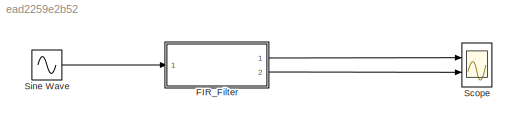
MODEL slx_ead2259e2b52
KIND model
CONFIG AbsTol = auto
CONFIG EnableMultiTasking = off
CONFIG FixedStep = auto
CONFIG MaxStep = auto
CONFIG MinStep = auto
CONFIG RelTol = 1e-3
CONFIG SampleTimeConstraint = Unconstrained
CONFIG Solver = VariableStepAuto
CONFIG SolverName = VariableStepAuto
CONFIG StartTime = 0.0
CONFIG StopTime = 10.0
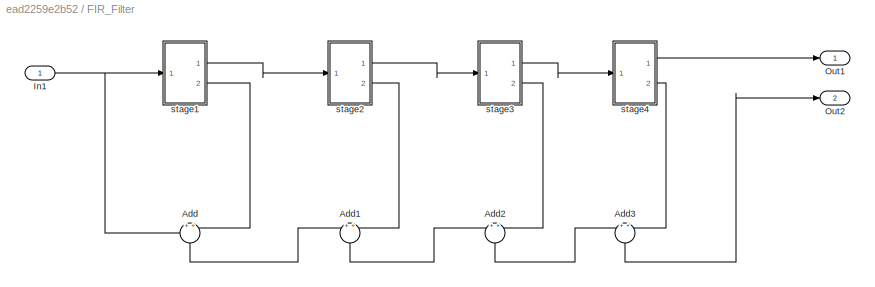
BLOCK [SubSystem] FIR_Filter
  Ports = [1, 2]
  RequestExecContextInheritance = off
  TreatAsAtomicUnit = on
BLOCK [Sum] FIR_Filter/Add
  NameLocation = left
  Ports = [2, 1]
BLOCK [Sum] FIR_Filter/Add1
  NameLocation = left
  Ports = [2, 1]
BLOCK [Sum] FIR_Filter/Add2
  NameLocation = left
  Ports = [2, 1]
BLOCK [Sum] FIR_Filter/Add3
  NameLocation = left
  Ports = [2, 1]
BLOCK [Inport] FIR_Filter/In1
BLOCK [Outport] FIR_Filter/Out1
BLOCK [Outport] FIR_Filter/Out2
  Port = 2
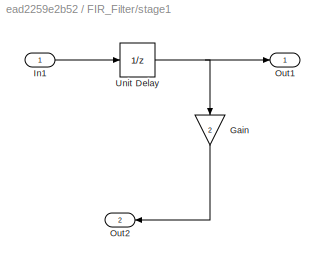
BLOCK [SubSystem] FIR_Filter/stage1
  Ports = [1, 2]
  RequestExecContextInheritance = off
BLOCK [Gain] FIR_Filter/stage1/Gain
  Gain = 2
  NameLocation = left
BLOCK [Inport] FIR_Filter/stage1/In1
BLOCK [Outport] FIR_Filter/stage1/Out1
BLOCK [Outport] FIR_Filter/stage1/Out2
  Port = 2
BLOCK [UnitDelay] FIR_Filter/stage1/Unit Delay
  HasFrameUpgradeWarning = on
  SampleTime = -1
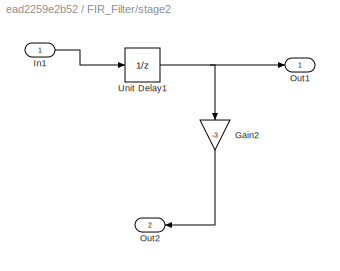
BLOCK [SubSystem] FIR_Filter/stage2
  Ports = [1, 2]
  RequestExecContextInheritance = off
BLOCK [Gain] FIR_Filter/stage2/Gain2
  Gain = -3
  NameLocation = left
BLOCK [Inport] FIR_Filter/stage2/In1
BLOCK [Outport] FIR_Filter/stage2/Out1
BLOCK [Outport] FIR_Filter/stage2/Out2
  Port = 2
BLOCK [UnitDelay] FIR_Filter/stage2/Unit Delay1
  HasFrameUpgradeWarning = on
  SampleTime = -1
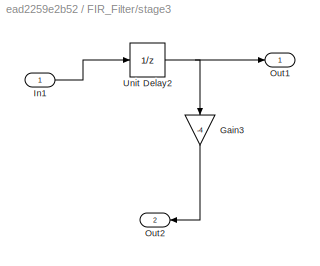
BLOCK [SubSystem] FIR_Filter/stage3
  Ports = [1, 2]
  RequestExecContextInheritance = off
BLOCK [Gain] FIR_Filter/stage3/Gain3
  Gain = -4
  NameLocation = left
BLOCK [Inport] FIR_Filter/stage3/In1
BLOCK [Outport] FIR_Filter/stage3/Out1
BLOCK [Outport] FIR_Filter/stage3/Out2
  Port = 2
BLOCK [UnitDelay] FIR_Filter/stage3/Unit Delay2
  HasFrameUpgradeWarning = on
  SampleTime = -1
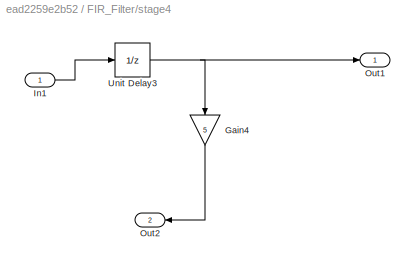
BLOCK [SubSystem] FIR_Filter/stage4
  Ports = [1, 2]
  RequestExecContextInheritance = off
BLOCK [Gain] FIR_Filter/stage4/Gain4
  Gain = 5
  NameLocation = left
BLOCK [Inport] FIR_Filter/stage4/In1
BLOCK [Outport] FIR_Filter/stage4/Out1
BLOCK [Outport] FIR_Filter/stage4/Out2
  Port = 2
BLOCK [UnitDelay] FIR_Filter/stage4/Unit Delay3
  HasFrameUpgradeWarning = on
  SampleTime = -1
BLOCK [Scope] Scope
  Floating = off
  NumInputPorts = 2
  Ports = [2]
  ScopeSpecificationString = Simulink.scopes.TimeScopeBlockCfg('CurrentConfiguration', extmgr.ConfigurationSet(extmgr.Configuration('Core','General UI',true),extmgr.Configuration('Core','Source UI',true),extmgr.Configuration('Sources','WiredSimulink',true),extmgr.Configuration('Visuals','Time Domain',true,'SerializedDisplays',{struct('MinYLimReal','-1.18882','MaxYLimReal','1.18882','YLabelReal','','MinYLimMag','0.00000','MaxY...<+1995ch>
BLOCK [Sin] Sine Wave
  Frequency = 2*pi
  Ports = [0, 1]
  SampleTime = 0
LINE FIR_Filter/Add1:1 -> FIR_Filter/Add2:1
LINE FIR_Filter/Add2:1 -> FIR_Filter/Add3:1
LINE FIR_Filter/Add3:1 -> FIR_Filter/Out2:1
LINE FIR_Filter/Add:1 -> FIR_Filter/Add1:1
NET FIR_Filter/In1:1 -> FIR_Filter/Add:1, FIR_Filter/stage1:1
LINE FIR_Filter/stage1/Gain:1 -> FIR_Filter/stage1/Out2:1
LINE FIR_Filter/stage1/In1:1 -> FIR_Filter/stage1/Unit Delay:1
NET FIR_Filter/stage1/Unit Delay:1 -> FIR_Filter/stage1/Gain:1, FIR_Filter/stage1/Out1:1
LINE FIR_Filter/stage1:1 -> FIR_Filter/stage2:1
LINE FIR_Filter/stage1:2 -> FIR_Filter/Add:2
LINE FIR_Filter/stage2/Gain2:1 -> FIR_Filter/stage2/Out2:1
LINE FIR_Filter/stage2/In1:1 -> FIR_Filter/stage2/Unit Delay1:1
NET FIR_Filter/stage2/Unit Delay1:1 -> FIR_Filter/stage2/Gain2:1, FIR_Filter/stage2/Out1:1
LINE FIR_Filter/stage2:1 -> FIR_Filter/stage3:1
LINE FIR_Filter/stage2:2 -> FIR_Filter/Add1:2
LINE FIR_Filter/stage3/Gain3:1 -> FIR_Filter/stage3/Out2:1
LINE FIR_Filter/stage3/In1:1 -> FIR_Filter/stage3/Unit Delay2:1
NET FIR_Filter/stage3/Unit Delay2:1 -> FIR_Filter/stage3/Gain3:1, FIR_Filter/stage3/Out1:1
LINE FIR_Filter/stage3:1 -> FIR_Filter/stage4:1
LINE FIR_Filter/stage3:2 -> FIR_Filter/Add2:2
LINE FIR_Filter/stage4/Gain4:1 -> FIR_Filter/stage4/Out2:1
LINE FIR_Filter/stage4/In1:1 -> FIR_Filter/stage4/Unit Delay3:1
NET FIR_Filter/stage4/Unit Delay3:1 -> FIR_Filter/stage4/Gain4:1, FIR_Filter/stage4/Out1:1
LINE FIR_Filter/stage4:1 -> FIR_Filter/Out1:1
LINE FIR_Filter/stage4:2 -> FIR_Filter/Add3:2
LINE FIR_Filter:1 -> Scope:1
LINE FIR_Filter:2 -> Scope:2
LINE Sine Wave:1 -> FIR_Filter:1
note: NET lines group one-source signal fan-out (src -> all destinations, sorted); 1:1 wires keep LINE
